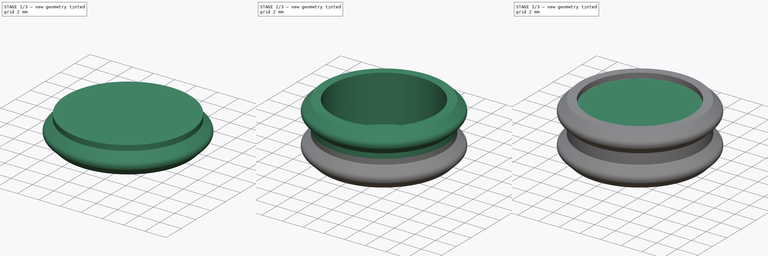
[diagram: build sequence overview — one tinted view per stage of 3, left to right]
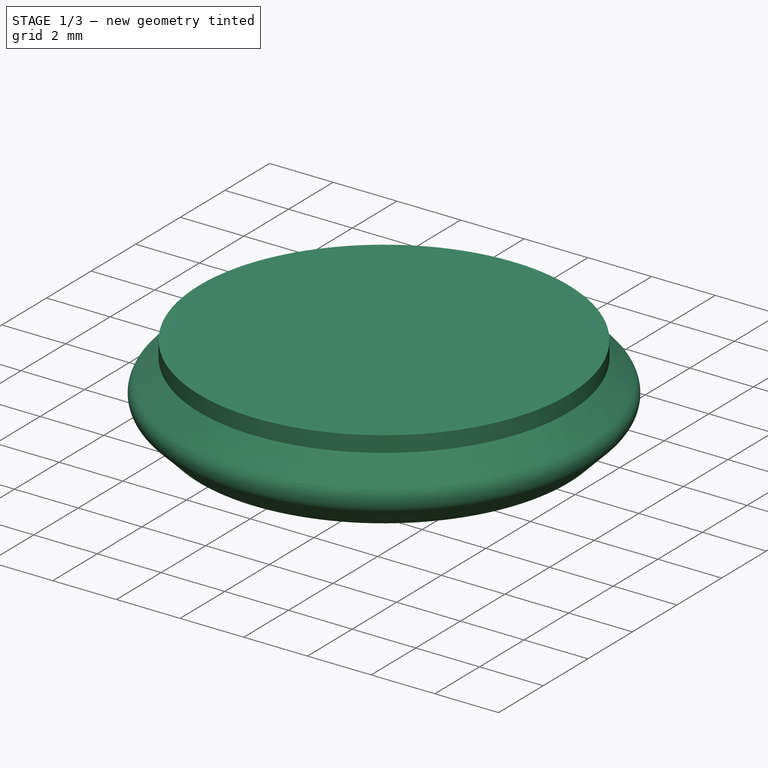
[diagram: stage 1 of 3 — iso view after this stage's code; geometry added in this stage tinted green]
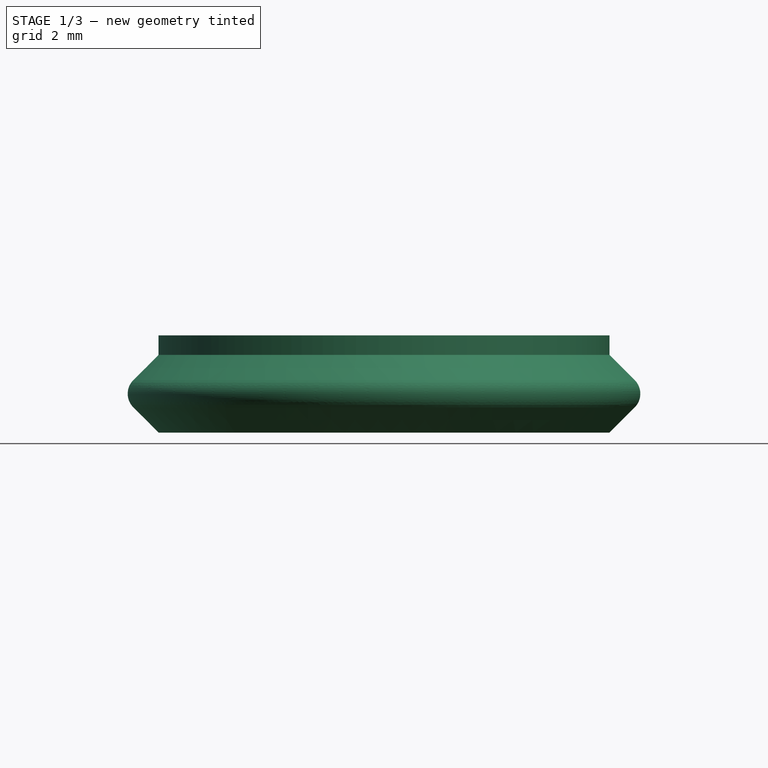
[diagram: stage 1 of 3 — front view after this stage's code; geometry added in this stage tinted green]
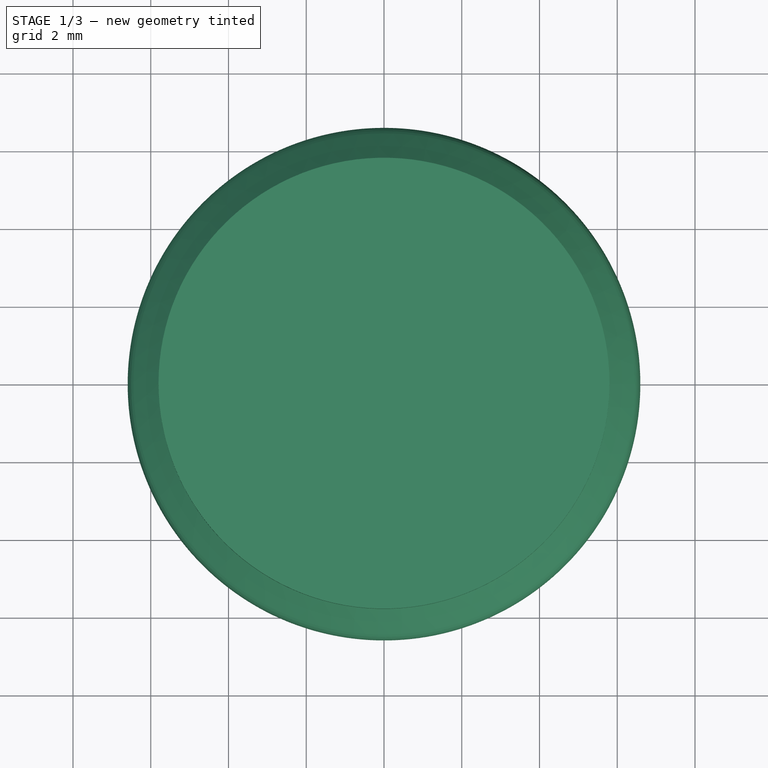
[diagram: stage 1 of 3 — top view after this stage's code; geometry added in this stage tinted green]
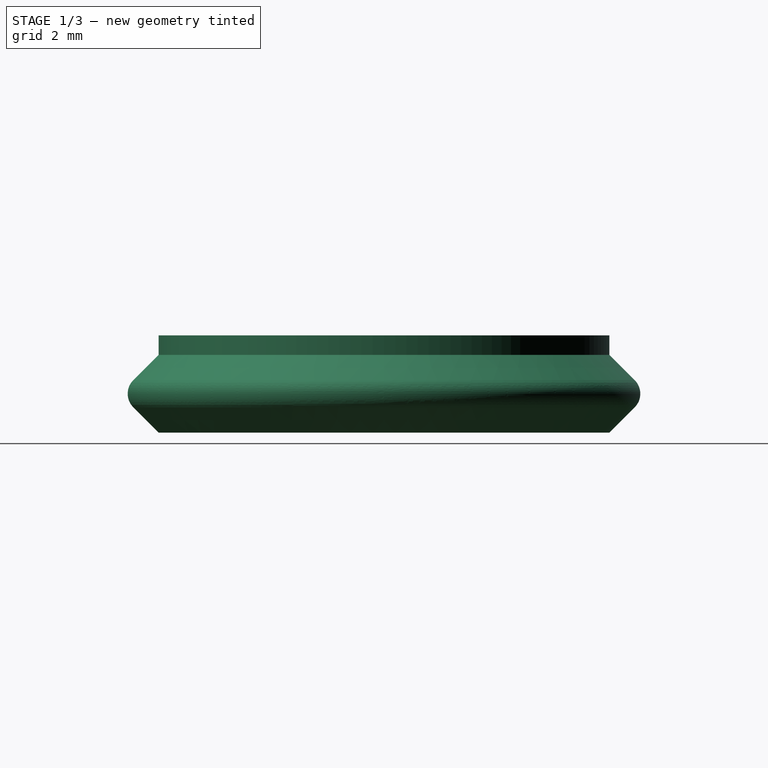
[diagram: stage 1 of 3 — right view after this stage's code; geometry added in this stage tinted green]
FCSTD DOCUMENT  (FreeCAD 0.16R6698 (Git))
Label: MiniIdler
License: All rights reserved
LicenseURL: http://en.wikipedia.org/wiki/All_rights_reserved
objects: Sketcher::SketchObject×4, Part::Feature×2, PartDesign::Pocket×2, App::DocumentObjectGroup×2, Part::Cylinder×1, PartDesign::Revolution×1, Part::Fillet×1, Part::Mirroring×1, Part::MultiFuse×1
note: 16 computed .brp shape members not serialized (recipe doc carries the construction recipe); baked Part::Feature solids carry a one-line shape summary decoded from their .brp

FEATURE [Sketcher::SketchObject] Sketch  label="StringPath"
  Placement = pos=(-97,-17,0) rot=(0,0,1;0rad)
  sketch-geometry (17):
    g0: ArcOfCircle CenterX=-110 CenterY=90 CenterZ=0 NormalX=0 NormalY=0 NormalZ=1 Radius=8 StartAngle=4.29e-08 EndAngle=3.14159
    g1: ArcOfCircle CenterX=110 CenterY=90 CenterZ=0 NormalX=0 NormalY=0 NormalZ=1 Radius=8 StartAngle=4.6528e-08 EndAngle=3.14159
    g2: ArcOfCircle CenterX=110 CenterY=-82 CenterZ=0 NormalX=0 NormalY=0 NormalZ=1 Radius=8 StartAngle=3.14159 EndAngle=6.28319
    g3: ArcOfCircle CenterX=97 CenterY=-17 CenterZ=0 NormalX=0 NormalY=0 NormalZ=1 Radius=5 StartAngle=2.40901e-06 EndAngle=1.5708
    g4: ArcOfCircle CenterX=97 CenterY=17 CenterZ=0 NormalX=0 NormalY=0 NormalZ=1 Radius=5 StartAngle=4.71239 EndAngle=6.28319
    g5: ArcOfCircle CenterX=-97 CenterY=17 CenterZ=0 NormalX=0 NormalY=0 NormalZ=1 Radius=5 StartAngle=3.14159 EndAngle=4.71239
    g6: ArcOfCircle CenterX=-97 CenterY=-17 CenterZ=0 NormalX=0 NormalY=0 NormalZ=1 Radius=5 StartAngle=1.57079 EndAngle=3.14159
    g7: ArcOfCircle CenterX=-110 CenterY=-82 CenterZ=0 NormalX=0 NormalY=0 NormalZ=1 Radius=8 StartAngle=3.14159 EndAngle=6.28319
    g8: LineSegment StartX=-118 StartY=90 StartZ=0 EndX=-118 EndY=-82 EndZ=0
    g9: LineSegment StartX=-102 StartY=-17 StartZ=0 EndX=-102 EndY=-82 EndZ=0
    g10: LineSegment StartX=-97 StartY=-12 StartZ=0 EndX=97 EndY=-12 EndZ=0
    g11: LineSegment StartX=-102 StartY=90 StartZ=0 EndX=-102 EndY=17 EndZ=0
    g12: LineSegment StartX=102 StartY=90 StartZ=0 EndX=102 EndY=17 EndZ=0
    g13: LineSegment StartX=118 StartY=90 StartZ=0 EndX=118 EndY=-82 EndZ=0
    g14: LineSegment StartX=102 StartY=-82 StartZ=0 EndX=102 EndY=-17 EndZ=0
    g15: LineSegment StartX=-97 StartY=12 StartZ=0 EndX=-20.947 EndY=12 EndZ=0
    g16: LineSegment StartX=14.5397 StartY=12 StartZ=0 EndX=97 EndY=12 EndZ=0
  constraints (49):
    c: Equal(g0,g1)
    c: Symmetric(g0,g1,g-2)
    c: Symmetric(g2,g7,g-2)
    c: Equal(g7,g2)
    c: Symmetric(g6,g3,g-2)
    c: Symmetric(g5,g4,g-2)
    c: DistanceX(g2) = 110
    c: DistanceX(g1) = 110
    c: DistanceY(g1) = 90
    c: DistanceY(g2) = -82
    c: Coincident(g13,g1)
    c: Coincident(g13,g2)
    c: Coincident(g14,g2)
    c: Coincident(g14,g3)
    c: Coincident(g3,g10)
    c: Coincident(g4,g12)
    c: Coincident(g6,g10)
    c: Coincident(g6,g9)
    c: Coincident(g7,g9)
    c: Coincident(g7,g8)
    c: Coincident(g8,g0)
    c: Coincident(g11,g0)
    c: Coincident(g12,g1)
    c: Coincident(g5,g11)
    c: Coincident(g16,g4)
    c: Coincident(g15,g5)
    c: Vertical(g8)
    c: Vertical(g13)
    c: Vertical(g12)
    c: Vertical(g11)
    c: Vertical(g9)
    c: Vertical(g14)
    c: Horizontal(g10)
    c: Horizontal(g15)
    c: Horizontal(g16)
    c: PointOnObject(g15,g16)
    c: Tangent(g5,g15)
    c: Tangent(g11,g0)
    c: Tangent(g9,g7)
    c: Tangent(g9,g6)
    c: Tangent(g10,g3)
    c: Tangent(g16,g4)
    c: Radius(g0) = 8
    c: Symmetric(g5,g6,g-1)
    c: Equal(g6,g5)
    c: Tangent(g1,g13)
    c: Tangent(g8,g0)
    c: Radius(g4) = 5
    c: DistanceY(g3,g4) = 24
FEATURE [Sketcher::SketchObject] Sketch001  label="Profile"
  Placement = pos=(0,0,0) rot=(1,0,0;1.5708rad)
  sketch-geometry (6):
    g0: LineSegment StartX=0 StartY=-2.5 StartZ=0 EndX=5.8 EndY=-2.5 EndZ=0
    g1: LineSegment StartX=5.8 StartY=-2.5 StartZ=0 EndX=6.8 EndY=-1.5 EndZ=0
    g2: LineSegment StartX=6.8 StartY=-1.5 StartZ=0 EndX=5.8 EndY=-0.5 EndZ=0
    g3: LineSegment StartX=5.8 StartY=-0.5 StartZ=0 EndX=5.8 EndY=0 EndZ=0
    g4: LineSegment StartX=5.8 StartY=0 StartZ=0 EndX=0 EndY=0 EndZ=0
    g5: LineSegment StartX=0 StartY=0 StartZ=0 EndX=0 EndY=-2.5 EndZ=0
  constraints (17):
    c: Coincident(g0,g1)
    c: Coincident(g1,g2)
    c: Coincident(g2,g3)
    c: Coincident(g3,g4)
    c: Coincident(g4,g5)
    c: Coincident(g5,g0)
    c: Horizontal(g4)
    c: Horizontal(g0)
    c: Vertical(g5)
    c: Vertical(g3)
    c: Coincident(g4,g-1)
    c: Perpendicular(g1,g2)
    c: Angle(g1) = 0.785398
    c: DistanceY(g3) = 0.5
    c: DistanceX(g3) = 5.8
    c: PointOnObject(g0,g3)
    c: DistanceY(g5) = -2.5
FEATURE [PartDesign::Revolution] Revolution  label="Revolve"
  Angle = 360
  Axis = (0,0,1)
  Base = (0,0,0)
  Placement = pos=(0,0,0) rot=(1,0,0;1.5708rad)
  ReferenceAxis = -> Sketch001 [V_Axis]
  Reversed = true
  Sketch = -> Sketch001
FEATURE [Part::Fillet] Fillet
  Base = -> Revolution
  Edges = 1 edges r=0.5: [Edge2]
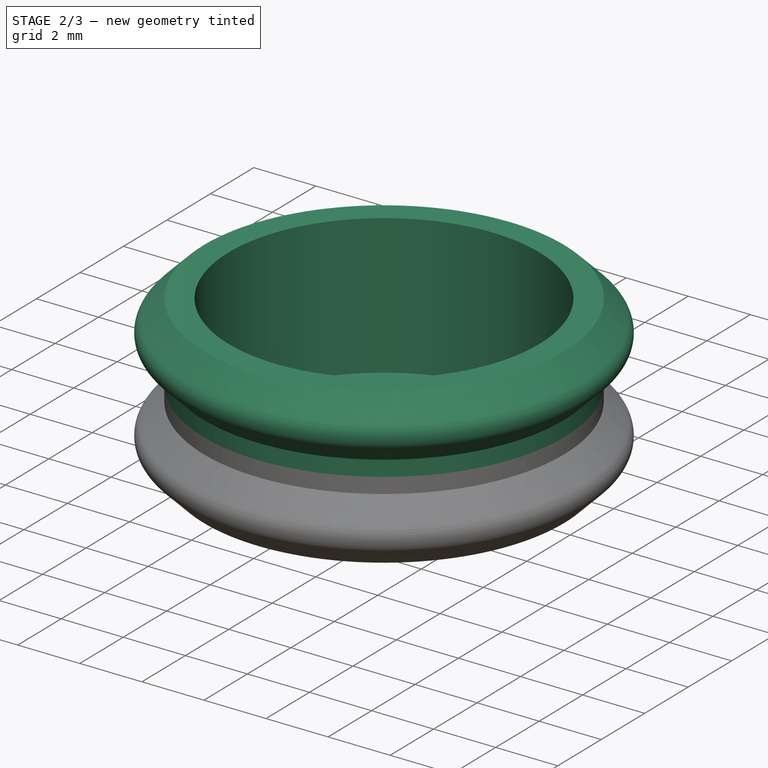
[diagram: stage 2 of 3 — iso view after this stage's code; geometry added in this stage tinted green]
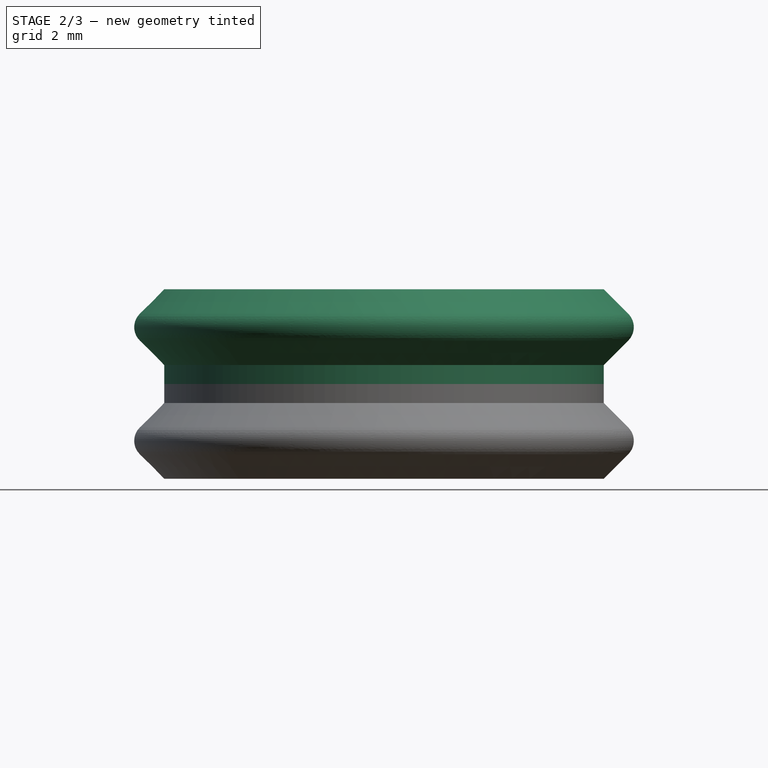
[diagram: stage 2 of 3 — front view after this stage's code; geometry added in this stage tinted green]
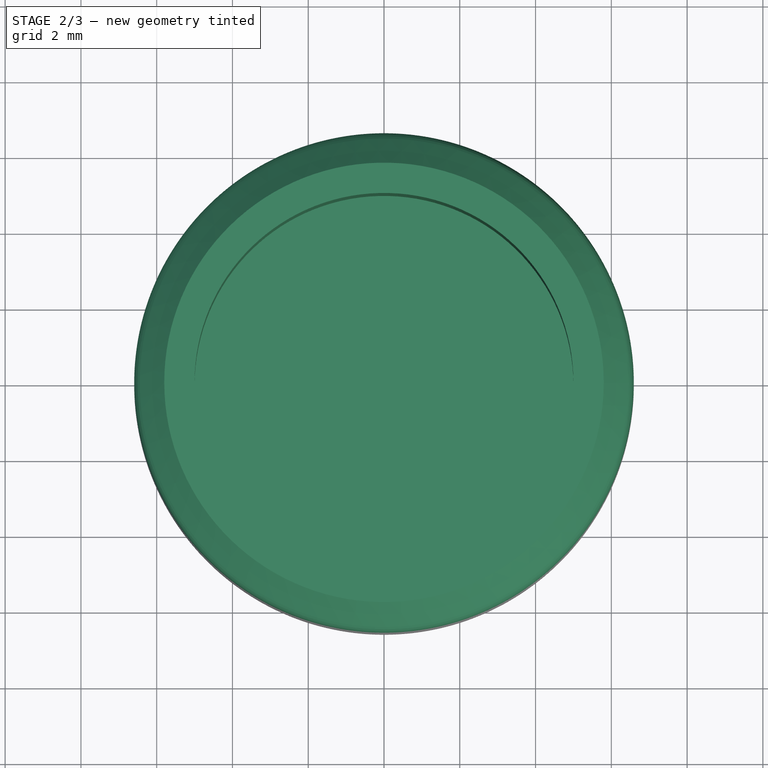
[diagram: stage 2 of 3 — top view after this stage's code; geometry added in this stage tinted green]
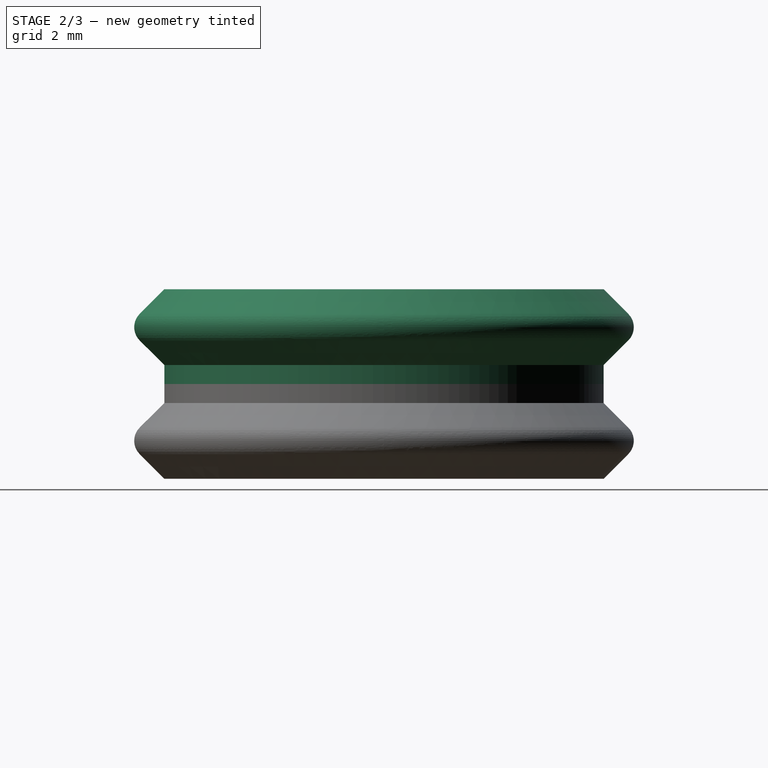
[diagram: stage 2 of 3 — right view after this stage's code; geometry added in this stage tinted green]
FEATURE [Part::Mirroring] Part__Mirroring  label="Fillet (Mirror #1)"
  Base = (0,0,0)
  Normal = (0,0,1)
  Source = -> Fillet
FEATURE [Part::MultiFuse] Fusion  label="Mirroring"
  Shapes = -> [Fillet,Part__Mirroring]
FEATURE [Sketcher::SketchObject] Sketch002  label="BearingPocket"
  Placement = pos=(0,0,2.5) rot=(0,0,1;0rad)
  Support = -> Fusion [Face10]
  sketch-geometry (1):
    g0: Circle CenterX=0 CenterY=0 CenterZ=0 NormalX=0 NormalY=0 NormalZ=1 Radius=5
  constraints (2):
    c: Coincident(g0,g-1)
    c: Radius(g0) = 5
FEATURE [PartDesign::Pocket] Pocket  label="BearingPocket001"
  Length = 4.5
  Sketch = -> Sketch002
  Type = 0
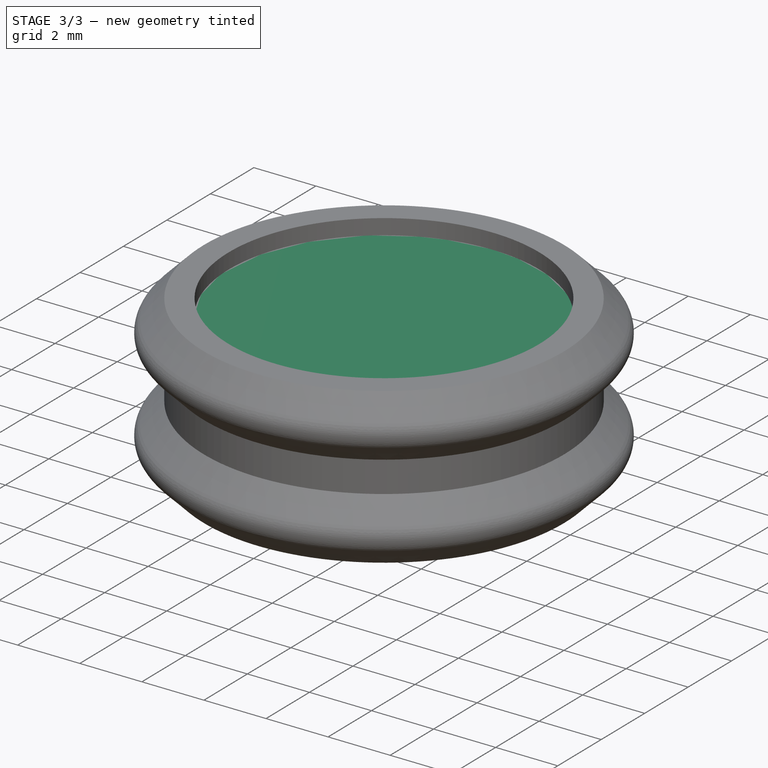
[diagram: stage 3 of 3 — iso view after this stage's code; geometry added in this stage tinted green]
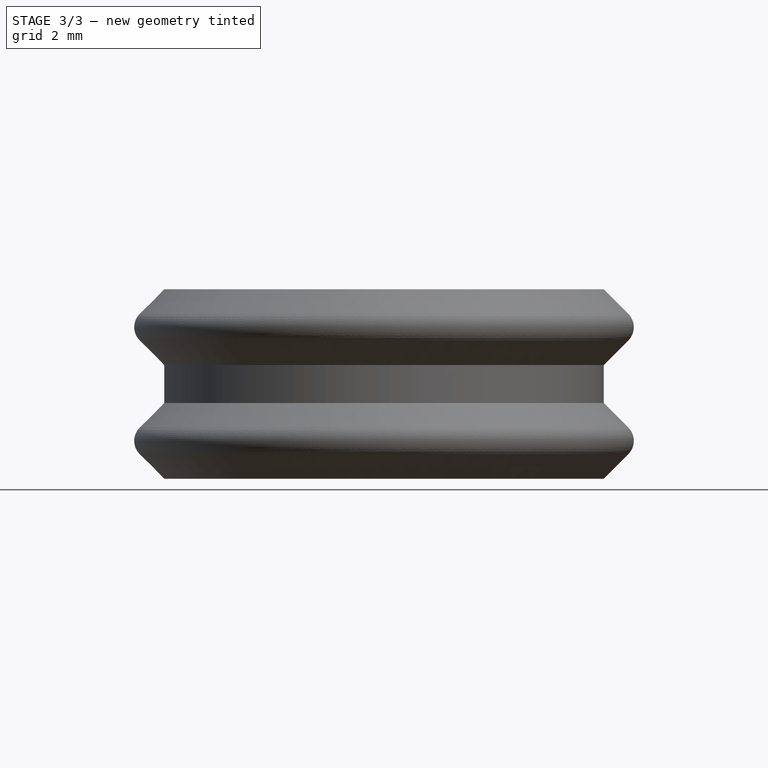
[diagram: stage 3 of 3 — front view after this stage's code; geometry added in this stage tinted green]
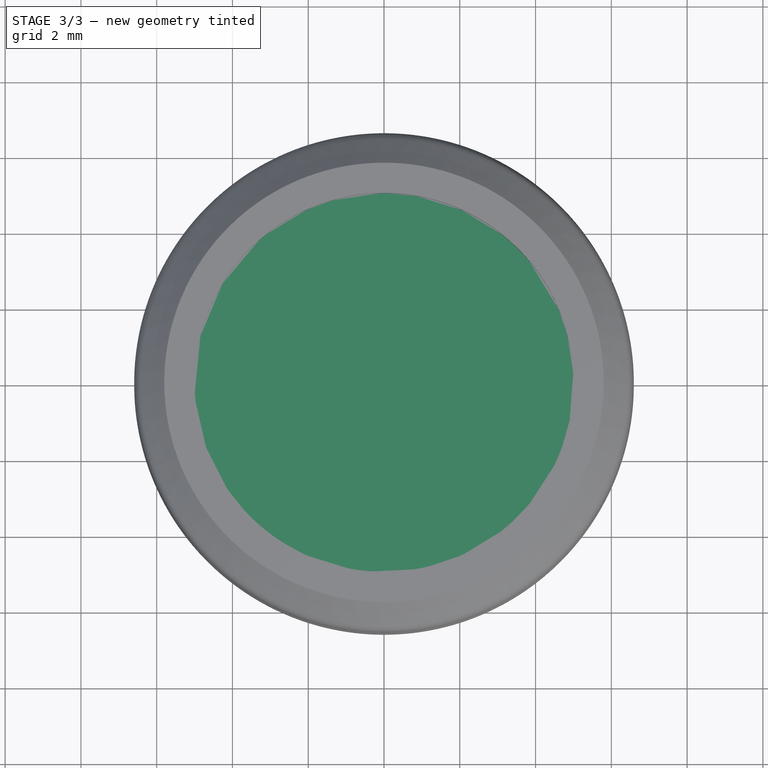
[diagram: stage 3 of 3 — top view after this stage's code; geometry added in this stage tinted green]
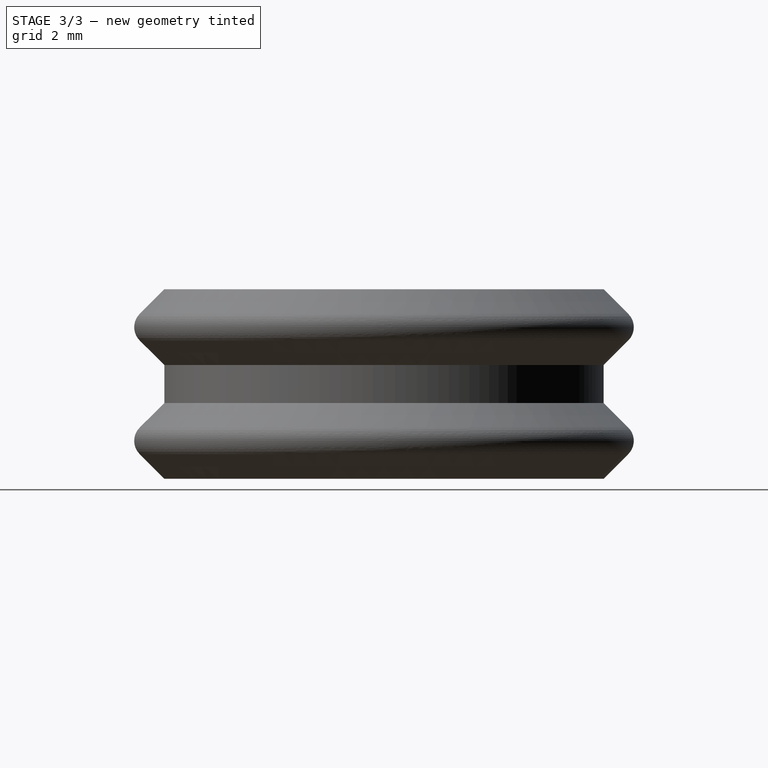
[diagram: stage 3 of 3 — right view after this stage's code; geometry added in this stage tinted green]
FEATURE [Part::Feature] Pocket008002  label="Ycarriage"
  Placement = pos=(-27,-17,0) rot=(0,0,1;0rad)
  shape: bbox 37.5 x 62 x 35.5 mm, 93 faces (baked)
FEATURE [Part::Cylinder] Cylinder004  label="623ZZ"
  Angle = 360
  Height = 4
  Placement = pos=(0,0,-2) rot=(0,0,1;0rad)
  Radius = 5
FEATURE [Sketcher::SketchObject] Sketch003  label="BoltHead"
  Placement = pos=(0,0,-2.5) rot=(1,0,0;3.14159rad)
  Support = -> Pocket [Face3]
  sketch-geometry (1):
    g0: Circle CenterX=0 CenterY=0 CenterZ=0 NormalX=0 NormalY=0 NormalZ=1 Radius=3.1
  constraints (2):
    c: Coincident(g0,g-1)
    c: Radius(g0) = 3.1
FEATURE [PartDesign::Pocket] Pocket008003  label="BoltHead001"
  Length = 5
  Sketch = -> Sketch003
  Type = 1
FEATURE [App::DocumentObjectGroup] Grupo  label="Reference"
  Group = -> [Pocket008002,Cylinder004,Sketch]
FEATURE [App::DocumentObjectGroup] Grupo001  label="src"
  Group = -> [Fusion,Pocket,Pocket008003]
FEATURE [Part::Feature] Pocket008003001  label="MiniIdler"
  shape: bbox 17.22 x 18.36 x 5 mm, 12 faces (baked)
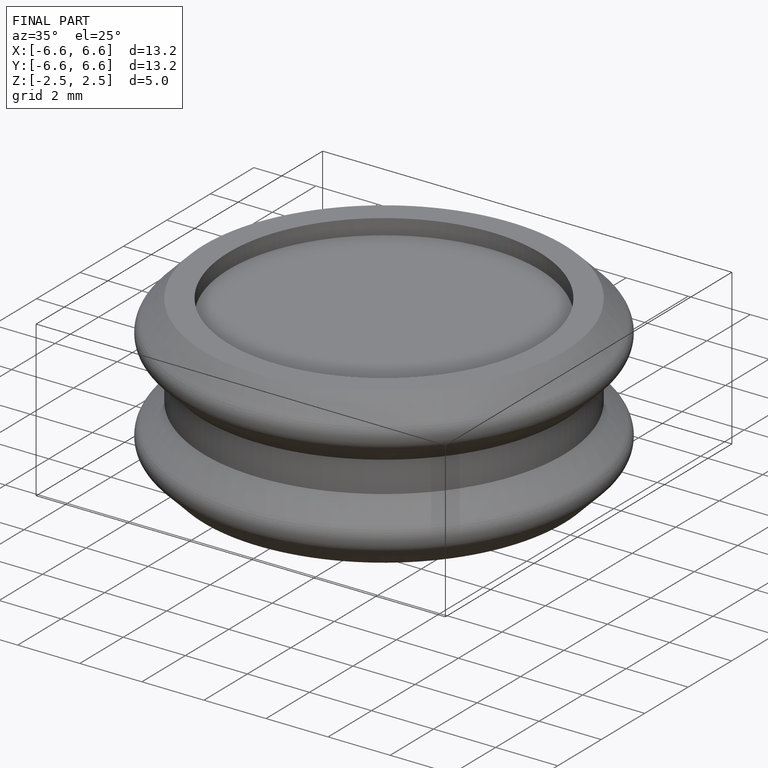
[diagram: finished part — iso view with bounding-box wireframe]
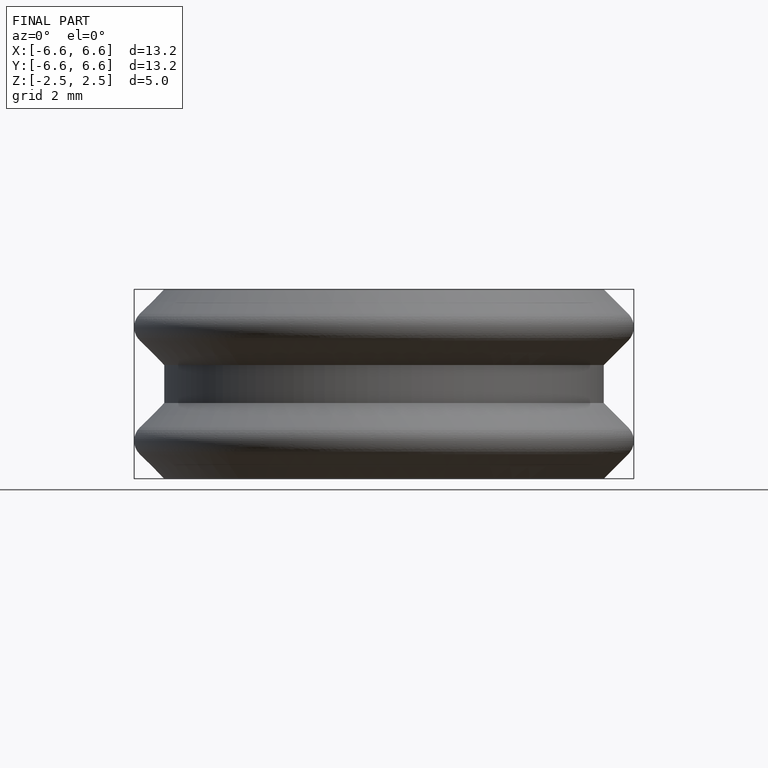
[diagram: finished part — front view with bounding-box wireframe]
